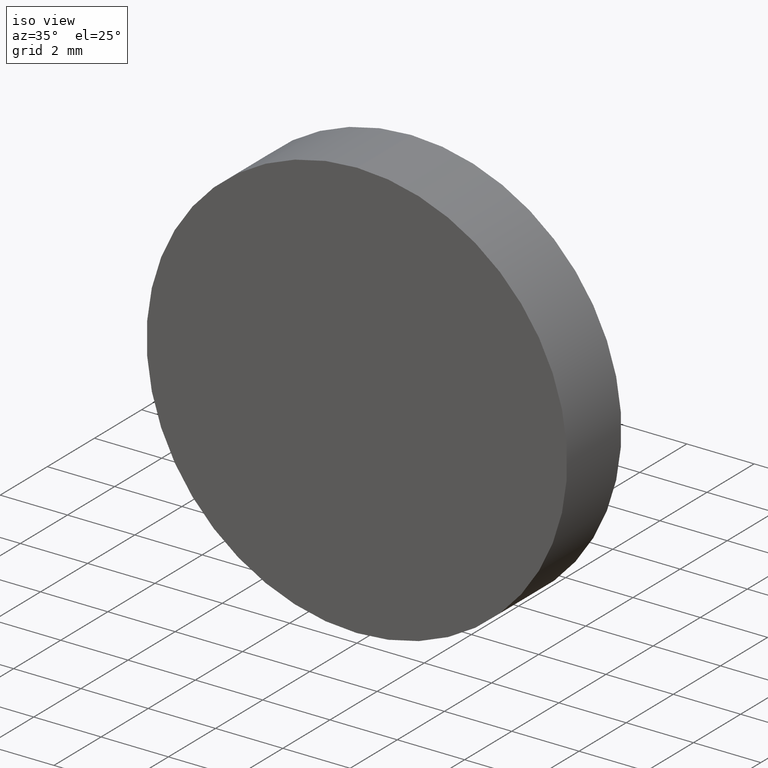
[diagram: clean part render]
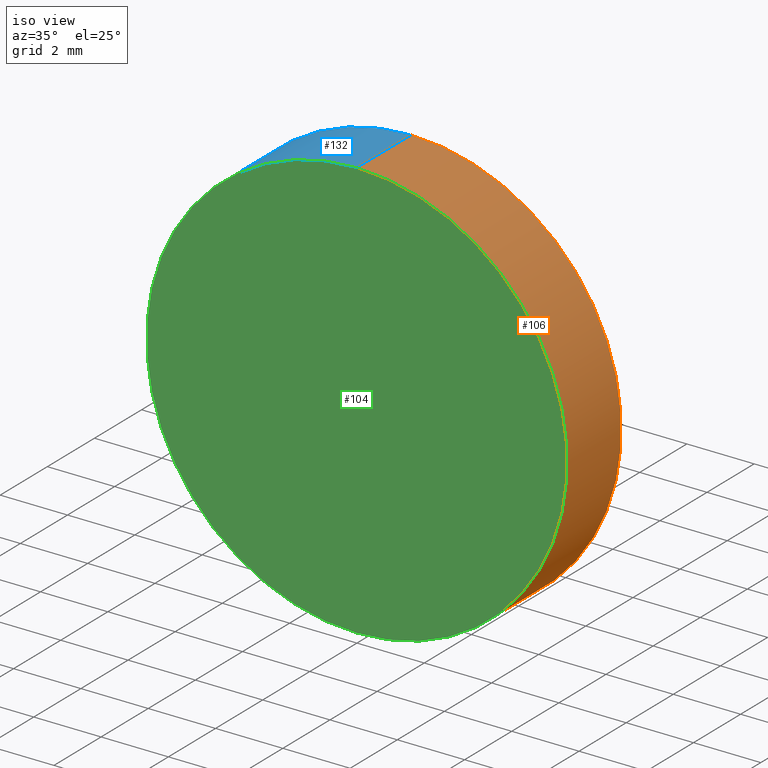
[diagram: same view with three faces highlighted in distinct colors, each labeled with its STEP entity id]
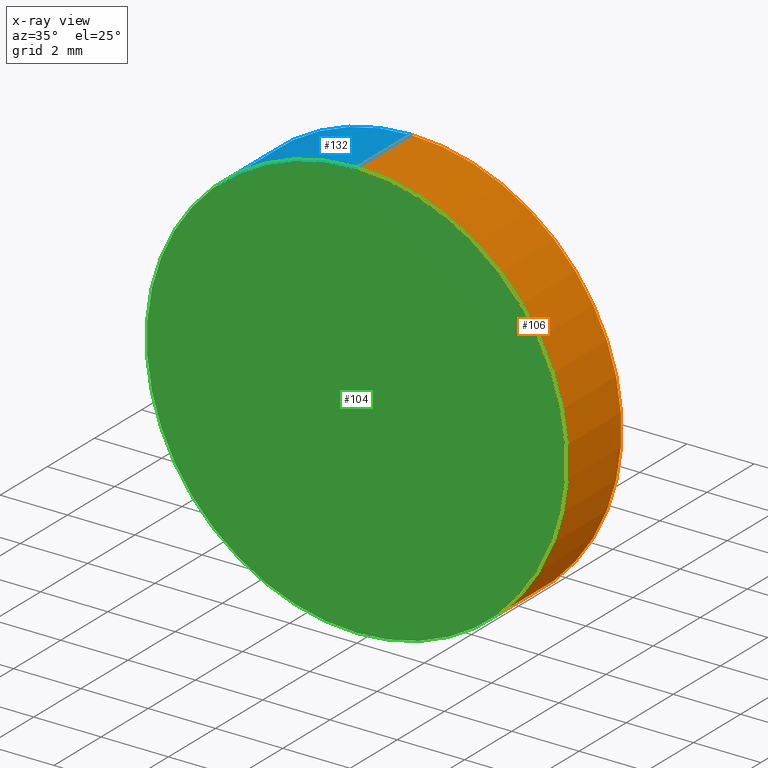
[diagram: x-ray of the same camera — body ghosted, the three highlighted faces saturated]
A machine part, iso view with three faces highlighted in distinct colors.
The next image is the same camera in x-ray (body ghosted, the three faces saturated) — at least one of them is partly hidden behind the body in this view.
Their STEP definitions:

[orange] entity #106 — the highlighted cylindrical surface (partial cylindrical patch) has radius 6.25 mm, axis along (-0, -1, -0).
#3 = DIRECTION ( 'NONE',  ( 0.0000000000000000000, 0.0000000000000000000, 1.000000000000000000 ) ) ;
#4 = ORIENTED_EDGE ( 'NONE', *, *, #97, .F. ) ;
#10 = FACE_OUTER_BOUND ( 'NONE', #90, .T. ) ;
#11 = AXIS2_PLACEMENT_3D ( 'NONE', #99, #21, #3 ) ;
#12 = EDGE_CURVE ( 'NONE', #66, #55, #112, .T. ) ;
#20 = DIRECTION ( 'NONE',  ( -0.0000000000000000000, -1.000000000000000000, -0.0000000000000000000 ) ) ;
#21 = DIRECTION ( 'NONE',  ( 0.0000000000000000000, 1.000000000000000000, 0.0000000000000000000 ) ) ;
#23 = CARTESIAN_POINT ( 'NONE',  ( 7.654042494670957600E-016, 2.299999999999999800, 6.250000000000000000 ) ) ;
#32 = VERTEX_POINT ( 'NONE', #34 ) ;
#34 = CARTESIAN_POINT ( 'NONE',  ( 0.0000000000000000000, 0.0000000000000000000, -6.250000000000000000 ) ) ;
#36 = CARTESIAN_POINT ( 'NONE',  ( 7.654042494670957600E-016, 0.0000000000000000000, 6.250000000000000000 ) ) ;
#39 = DIRECTION ( 'NONE',  ( 0.0000000000000000000, 0.0000000000000000000, -1.000000000000000000 ) ) ;
#40 = CYLINDRICAL_SURFACE ( 'NONE', #118, 6.250000000000000000 ) ;
#41 = DIRECTION ( 'NONE',  ( 0.0000000000000000000, 1.000000000000000000, 0.0000000000000000000 ) ) ;
#43 = EDGE_CURVE ( 'NONE', #66, #45, #85, .T. ) ;
#44 = VECTOR ( 'NONE', #113, 1000.000000000000000 ) ;
#45 = VERTEX_POINT ( 'NONE', #36 ) ;
#55 = VERTEX_POINT ( 'NONE', #124 ) ;
#66 = VERTEX_POINT ( 'NONE', #23 ) ;
#68 = CIRCLE ( 'NONE', #109, 6.250000000000000000 ) ;
#69 = CARTESIAN_POINT ( 'NONE',  ( 7.654042494670957600E-016, 2.299999999999999800, 6.250000000000000000 ) ) ;
#72 = LINE ( 'NONE', #79, #44 ) ;
#79 = CARTESIAN_POINT ( 'NONE',  ( 0.0000000000000000000, 2.299999999999999800, -6.250000000000000000 ) ) ;
#85 = LINE ( 'NONE', #69, #110 ) ;
#86 = ORIENTED_EDGE ( 'NONE', *, *, #12, .F. ) ;
#88 = ORIENTED_EDGE ( 'NONE', *, *, #43, .T. ) ;
#90 = EDGE_LOOP ( 'NONE', ( #86, #88, #122, #4 ) ) ;
#92 = DIRECTION ( 'NONE',  ( -0.0000000000000000000, -1.000000000000000000, -0.0000000000000000000 ) ) ;
#97 = EDGE_CURVE ( 'NONE', #55, #32, #72, .T. ) ;
#99 = CARTESIAN_POINT ( 'NONE',  ( 0.0000000000000000000, 2.299999999999999800, 0.0000000000000000000 ) ) ;
#102 = CARTESIAN_POINT ( 'NONE',  ( 0.0000000000000000000, 0.0000000000000000000, 0.0000000000000000000 ) ) ;
#106 = ADVANCED_FACE ( 'NONE', ( #10 ), #40, .T. ) ;
#109 = AXIS2_PLACEMENT_3D ( 'NONE', #102, #41, #115 ) ;
#110 = VECTOR ( 'NONE', #20, 1000.000000000000000 ) ;
#112 = CIRCLE ( 'NONE', #11, 6.250000000000000000 ) ;
#113 = DIRECTION ( 'NONE',  ( -0.0000000000000000000, -1.000000000000000000, -0.0000000000000000000 ) ) ;
#115 = DIRECTION ( 'NONE',  ( 0.0000000000000000000, 0.0000000000000000000, 1.000000000000000000 ) ) ;
#118 = AXIS2_PLACEMENT_3D ( 'NONE', #128, #92, #39 ) ;
#122 = ORIENTED_EDGE ( 'NONE', *, *, #123, .T. ) ;
#123 = EDGE_CURVE ( 'NONE', #45, #32, #68, .T. ) ;
#124 = CARTESIAN_POINT ( 'NONE',  ( 0.0000000000000000000, 2.299999999999999800, -6.250000000000000000 ) ) ;
#128 = CARTESIAN_POINT ( 'NONE',  ( 0.0000000000000000000, 2.299999999999999800, 0.0000000000000000000 ) ) ;

[blue] entity #132 — the highlighted cylindrical surface (partial cylindrical patch) has radius 6.25 mm, axis along (-0, -1, -0).
#8 = CIRCLE ( 'NONE', #108, 6.250000000000000000 ) ;
#9 = ORIENTED_EDGE ( 'NONE', *, *, #35, .F. ) ;
#13 = DIRECTION ( 'NONE',  ( 0.0000000000000000000, 0.0000000000000000000, 1.000000000000000000 ) ) ;
#17 = EDGE_LOOP ( 'NONE', ( #87, #9, #95, #29 ) ) ;
#20 = DIRECTION ( 'NONE',  ( -0.0000000000000000000, -1.000000000000000000, -0.0000000000000000000 ) ) ;
#23 = CARTESIAN_POINT ( 'NONE',  ( 7.654042494670957600E-016, 2.299999999999999800, 6.250000000000000000 ) ) ;
#25 = CARTESIAN_POINT ( 'NONE',  ( 0.0000000000000000000, 2.299999999999999800, 0.0000000000000000000 ) ) ;
#29 = ORIENTED_EDGE ( 'NONE', *, *, #47, .T. ) ;
#32 = VERTEX_POINT ( 'NONE', #34 ) ;
#34 = CARTESIAN_POINT ( 'NONE',  ( 0.0000000000000000000, 0.0000000000000000000, -6.250000000000000000 ) ) ;
#35 = EDGE_CURVE ( 'NONE', #55, #66, #140, .T. ) ;
#36 = CARTESIAN_POINT ( 'NONE',  ( 7.654042494670957600E-016, 0.0000000000000000000, 6.250000000000000000 ) ) ;
#38 = CARTESIAN_POINT ( 'NONE',  ( 0.0000000000000000000, 0.0000000000000000000, 0.0000000000000000000 ) ) ;
#43 = EDGE_CURVE ( 'NONE', #66, #45, #85, .T. ) ;
#44 = VECTOR ( 'NONE', #113, 1000.000000000000000 ) ;
#45 = VERTEX_POINT ( 'NONE', #36 ) ;
#47 = EDGE_CURVE ( 'NONE', #32, #45, #8, .T. ) ;
#48 = CARTESIAN_POINT ( 'NONE',  ( 0.0000000000000000000, 2.299999999999999800, 0.0000000000000000000 ) ) ;
#55 = VERTEX_POINT ( 'NONE', #124 ) ;
#66 = VERTEX_POINT ( 'NONE', #23 ) ;
#69 = CARTESIAN_POINT ( 'NONE',  ( 7.654042494670957600E-016, 2.299999999999999800, 6.250000000000000000 ) ) ;
#72 = LINE ( 'NONE', #79, #44 ) ;
#79 = CARTESIAN_POINT ( 'NONE',  ( 0.0000000000000000000, 2.299999999999999800, -6.250000000000000000 ) ) ;
#81 = AXIS2_PLACEMENT_3D ( 'NONE', #25, #137, #84 ) ;
#82 = FACE_OUTER_BOUND ( 'NONE', #17, .T. ) ;
#84 = DIRECTION ( 'NONE',  ( 0.0000000000000000000, 0.0000000000000000000, -1.000000000000000000 ) ) ;
#85 = LINE ( 'NONE', #69, #110 ) ;
#87 = ORIENTED_EDGE ( 'NONE', *, *, #43, .F. ) ;
#91 = DIRECTION ( 'NONE',  ( 0.0000000000000000000, 1.000000000000000000, 0.0000000000000000000 ) ) ;
#93 = CYLINDRICAL_SURFACE ( 'NONE', #81, 6.250000000000000000 ) ;
#95 = ORIENTED_EDGE ( 'NONE', *, *, #97, .T. ) ;
#97 = EDGE_CURVE ( 'NONE', #55, #32, #72, .T. ) ;
#98 = DIRECTION ( 'NONE',  ( 0.0000000000000000000, 0.0000000000000000000, 1.000000000000000000 ) ) ;
#108 = AXIS2_PLACEMENT_3D ( 'NONE', #38, #91, #13 ) ;
#110 = VECTOR ( 'NONE', #20, 1000.000000000000000 ) ;
#111 = DIRECTION ( 'NONE',  ( 0.0000000000000000000, 1.000000000000000000, 0.0000000000000000000 ) ) ;
#113 = DIRECTION ( 'NONE',  ( -0.0000000000000000000, -1.000000000000000000, -0.0000000000000000000 ) ) ;
#124 = CARTESIAN_POINT ( 'NONE',  ( 0.0000000000000000000, 2.299999999999999800, -6.250000000000000000 ) ) ;
#132 = ADVANCED_FACE ( 'NONE', ( #82 ), #93, .T. ) ;
#134 = AXIS2_PLACEMENT_3D ( 'NONE', #48, #111, #98 ) ;
#137 = DIRECTION ( 'NONE',  ( -0.0000000000000000000, -1.000000000000000000, -0.0000000000000000000 ) ) ;
#140 = CIRCLE ( 'NONE', #134, 6.250000000000000000 ) ;

[green] entity #104 — the highlighted planar face has unit normal (0, 1, 0).
#8 = CIRCLE ( 'NONE', #108, 6.250000000000000000 ) ;
#13 = DIRECTION ( 'NONE',  ( 0.0000000000000000000, 0.0000000000000000000, 1.000000000000000000 ) ) ;
#22 = ORIENTED_EDGE ( 'NONE', *, *, #47, .F. ) ;
#24 = PLANE ( 'NONE',  #46 ) ;
#32 = VERTEX_POINT ( 'NONE', #34 ) ;
#33 = ORIENTED_EDGE ( 'NONE', *, *, #123, .F. ) ;
#34 = CARTESIAN_POINT ( 'NONE',  ( 0.0000000000000000000, 0.0000000000000000000, -6.250000000000000000 ) ) ;
#36 = CARTESIAN_POINT ( 'NONE',  ( 7.654042494670957600E-016, 0.0000000000000000000, 6.250000000000000000 ) ) ;
#38 = CARTESIAN_POINT ( 'NONE',  ( 0.0000000000000000000, 0.0000000000000000000, 0.0000000000000000000 ) ) ;
#41 = DIRECTION ( 'NONE',  ( 0.0000000000000000000, 1.000000000000000000, 0.0000000000000000000 ) ) ;
#45 = VERTEX_POINT ( 'NONE', #36 ) ;
#46 = AXIS2_PLACEMENT_3D ( 'NONE', #101, #114, #50 ) ;
#47 = EDGE_CURVE ( 'NONE', #32, #45, #8, .T. ) ;
#50 = DIRECTION ( 'NONE',  ( 0.0000000000000000000, -0.0000000000000000000, 1.000000000000000000 ) ) ;
#61 = EDGE_LOOP ( 'NONE', ( #22, #33 ) ) ;
#68 = CIRCLE ( 'NONE', #109, 6.250000000000000000 ) ;
#91 = DIRECTION ( 'NONE',  ( 0.0000000000000000000, 1.000000000000000000, 0.0000000000000000000 ) ) ;
#101 = CARTESIAN_POINT ( 'NONE',  ( 0.0000000000000000000, 0.0000000000000000000, 0.0000000000000000000 ) ) ;
#102 = CARTESIAN_POINT ( 'NONE',  ( 0.0000000000000000000, 0.0000000000000000000, 0.0000000000000000000 ) ) ;
#104 = ADVANCED_FACE ( 'NONE', ( #130 ), #24, .F. ) ;
#108 = AXIS2_PLACEMENT_3D ( 'NONE', #38, #91, #13 ) ;
#109 = AXIS2_PLACEMENT_3D ( 'NONE', #102, #41, #115 ) ;
#114 = DIRECTION ( 'NONE',  ( 0.0000000000000000000, 1.000000000000000000, 0.0000000000000000000 ) ) ;
#115 = DIRECTION ( 'NONE',  ( 0.0000000000000000000, 0.0000000000000000000, 1.000000000000000000 ) ) ;
#123 = EDGE_CURVE ( 'NONE', #45, #32, #68, .T. ) ;
#130 = FACE_OUTER_BOUND ( 'NONE', #61, .T. ) ;